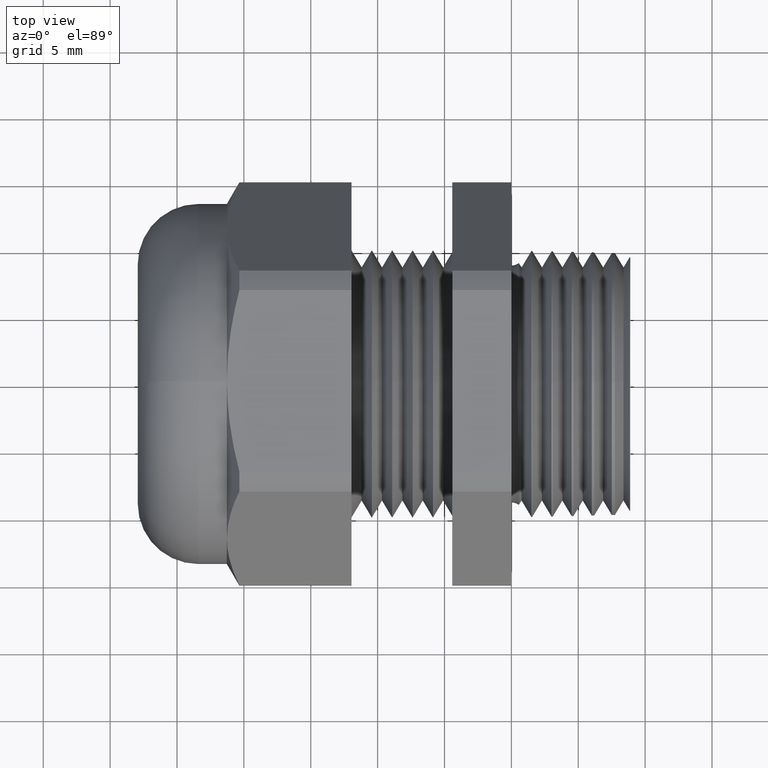
[diagram: clean part render]
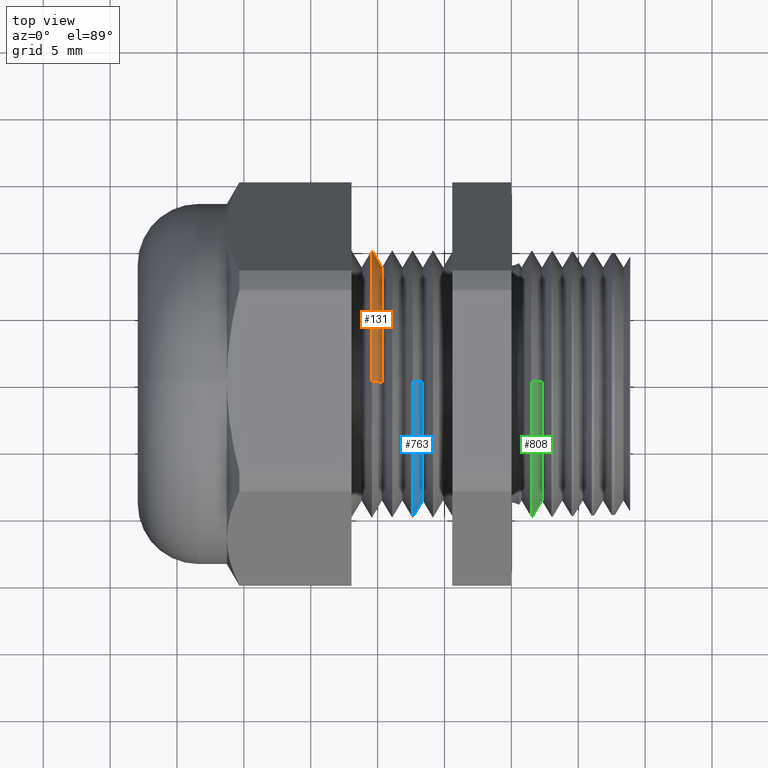
[diagram: same view with three faces highlighted in distinct colors, each labeled with its STEP entity id]
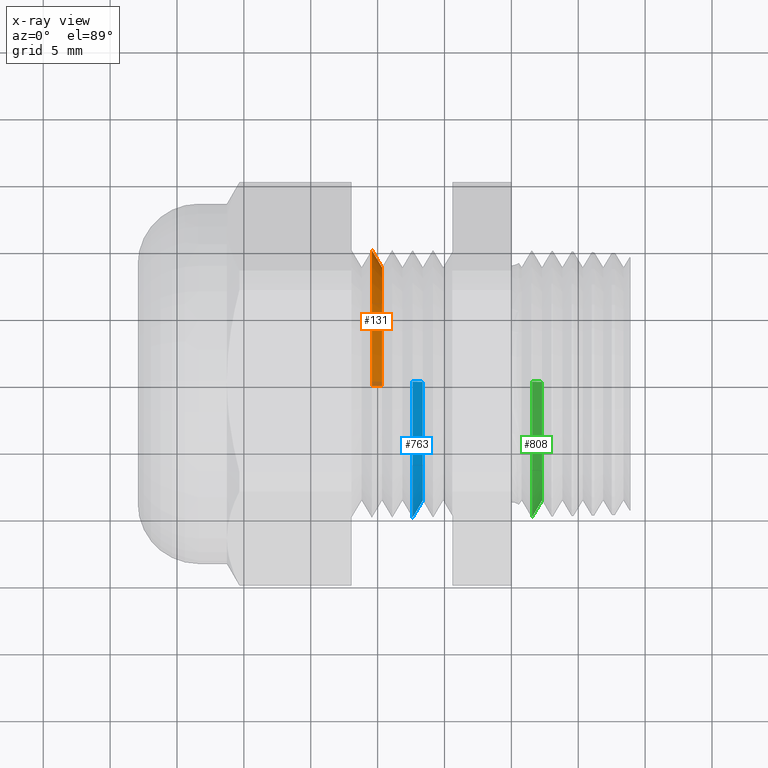
[diagram: x-ray of the same camera — body ghosted, the three highlighted faces saturated]
A machine part, top view with three faces highlighted in distinct colors.
The next image is the same camera in x-ray (body ghosted, the three faces saturated) — at least one of them is partly hidden behind the body in this view.
Their STEP definitions:

[orange] entity #131 — the highlighted conical surface has half-angle 60 deg.
#115 = VERTEX_POINT ( 'NONE', #1119 ) ;
#131 = ADVANCED_FACE ( 'NONE', ( #1153 ), #1152, .T. ) ;
#132 = EDGE_LOOP ( 'NONE', ( #261, #778, #774, #695 ) ) ;
#242 = VERTEX_POINT ( 'NONE', #1429 ) ;
#261 = ORIENTED_EDGE ( 'NONE', *, *, #265, .F. ) ;
#265 = EDGE_CURVE ( 'NONE', #242, #115, #1181, .T. ) ;
#693 = EDGE_CURVE ( 'NONE', #115, #694, #2255, .T. ) ;
#694 = VERTEX_POINT ( 'NONE', #2251 ) ;
#695 = ORIENTED_EDGE ( 'NONE', *, *, #693, .F. ) ;
#774 = ORIENTED_EDGE ( 'NONE', *, *, #775, .T. ) ;
#775 = EDGE_CURVE ( 'NONE', #777, #694, #2332, .T. ) ;
#776 = EDGE_CURVE ( 'NONE', #242, #777, #2327, .T. ) ;
#777 = VERTEX_POINT ( 'NONE', #2323 ) ;
#778 = ORIENTED_EDGE ( 'NONE', *, *, #776, .T. ) ;
#1119 = CARTESIAN_POINT ( 'NONE',  ( -0.3808333473208367300, 4.519182433362568700E-017, 0.3430385000000000200 ) ) ;
#1148 = DIRECTION ( 'NONE',  ( 0.0000000000000000000, 0.0000000000000000000, 1.000000000000000000 ) ) ;
#1149 = DIRECTION ( 'NONE',  ( -1.000000000000000000, 0.0000000000000000000, 0.0000000000000000000 ) ) ;
#1150 = AXIS2_PLACEMENT_3D ( 'NONE', #1159, #1149, #1148 ) ;
#1152 = CONICAL_SURFACE ( 'NONE', #1150, 0.3950000000000000200, 1.047197551196603200 ) ;
#1153 = FACE_OUTER_BOUND ( 'NONE', #132, .T. ) ;
#1159 = CARTESIAN_POINT ( 'NONE',  ( -0.4108333333333331100, 0.0000000000000000000, 0.0000000000000000000 ) ) ;
#1167 = CARTESIAN_POINT ( 'NONE',  ( -0.3808333473208367300, 0.0000000000000000000, 0.0000000000000000000 ) ) ;
#1179 = AXIS2_PLACEMENT_3D ( 'NONE', #1167, #1187, #1186 ) ;
#1181 = CIRCLE ( 'NONE', #1179, 0.3430385000000000200 ) ;
#1186 = DIRECTION ( 'NONE',  ( 0.0000000000000000000, 0.0000000000000000000, -1.000000000000000000 ) ) ;
#1187 = DIRECTION ( 'NONE',  ( 1.000000000000000000, 0.0000000000000000000, 0.0000000000000000000 ) ) ;
#1429 = CARTESIAN_POINT ( 'NONE',  ( -0.3808333473208367300, 0.0000000000000000000, -0.3430385000000000200 ) ) ;
#2251 = CARTESIAN_POINT ( 'NONE',  ( -0.4108333333333331100, 4.837354856632045600E-017, 0.3950000000000000200 ) ) ;
#2252 = DIRECTION ( 'NONE',  ( -0.4999999999999952800, 0.0000000000000000000, 0.8660254037844412600 ) ) ;
#2253 = VECTOR ( 'NONE', #2252, 39.37007874015748100 ) ;
#2254 = CARTESIAN_POINT ( 'NONE',  ( -0.4108333333333331100, 0.0000000000000000000, 0.3950000000000000200 ) ) ;
#2255 = LINE ( 'NONE', #2254, #2253 ) ;
#2323 = CARTESIAN_POINT ( 'NONE',  ( -0.4108333333333331100, 0.0000000000000000000, -0.3950000000000000200 ) ) ;
#2324 = DIRECTION ( 'NONE',  ( -0.4999999999999952800, 1.060575238724910200E-016, -0.8660254037844412600 ) ) ;
#2325 = VECTOR ( 'NONE', #2324, 39.37007874015748100 ) ;
#2326 = CARTESIAN_POINT ( 'NONE',  ( -0.4108333333333331100, 4.837354856632045600E-017, -0.3950000000000000200 ) ) ;
#2327 = LINE ( 'NONE', #2326, #2325 ) ;
#2328 = DIRECTION ( 'NONE',  ( 0.0000000000000000000, 0.0000000000000000000, -1.000000000000000000 ) ) ;
#2329 = DIRECTION ( 'NONE',  ( 1.000000000000000000, 0.0000000000000000000, 0.0000000000000000000 ) ) ;
#2330 = CARTESIAN_POINT ( 'NONE',  ( -0.4108333333333331100, 0.0000000000000000000, 0.0000000000000000000 ) ) ;
#2331 = AXIS2_PLACEMENT_3D ( 'NONE', #2330, #2329, #2328 ) ;
#2332 = CIRCLE ( 'NONE', #2331, 0.3950000000000000200 ) ;

[blue] entity #763 — the highlighted conical surface has half-angle 60 deg.
#94 = VERTEX_POINT ( 'NONE', #1091 ) ;
#98 = EDGE_CURVE ( 'NONE', #102, #94, #1079, .T. ) ;
#101 = EDGE_CURVE ( 'NONE', #604, #103, #1075, .T. ) ;
#102 = VERTEX_POINT ( 'NONE', #1071 ) ;
#103 = VERTEX_POINT ( 'NONE', #1070 ) ;
#604 = VERTEX_POINT ( 'NONE', #2070 ) ;
#698 = EDGE_CURVE ( 'NONE', #94, #103, #2246, .T. ) ;
#759 = EDGE_CURVE ( 'NONE', #102, #604, #2296, .T. ) ;
#763 = ADVANCED_FACE ( 'NONE', ( #2351 ), #2350, .T. ) ;
#764 = EDGE_LOOP ( 'NONE', ( #765, #766, #767, #768 ) ) ;
#765 = ORIENTED_EDGE ( 'NONE', *, *, #101, .F. ) ;
#766 = ORIENTED_EDGE ( 'NONE', *, *, #759, .F. ) ;
#767 = ORIENTED_EDGE ( 'NONE', *, *, #98, .T. ) ;
#768 = ORIENTED_EDGE ( 'NONE', *, *, #698, .T. ) ;
#1070 = CARTESIAN_POINT ( 'NONE',  ( -0.2908333333333330600, 0.0000000000000000000, -0.3950000000000000200 ) ) ;
#1071 = CARTESIAN_POINT ( 'NONE',  ( -0.2608333473208367400, 4.519182433362568700E-017, 0.3430385000000000200 ) ) ;
#1072 = DIRECTION ( 'NONE',  ( -0.4999999999999952800, 1.060575238724910200E-016, -0.8660254037844412600 ) ) ;
#1073 = VECTOR ( 'NONE', #1072, 39.37007874015748100 ) ;
#1074 = CARTESIAN_POINT ( 'NONE',  ( -0.2908333333333330600, 4.837354856632045600E-017, -0.3950000000000000200 ) ) ;
#1075 = LINE ( 'NONE', #1074, #1073 ) ;
#1076 = DIRECTION ( 'NONE',  ( -0.4999999999999952800, 0.0000000000000000000, 0.8660254037844412600 ) ) ;
#1077 = VECTOR ( 'NONE', #1076, 39.37007874015748100 ) ;
#1078 = CARTESIAN_POINT ( 'NONE',  ( -0.2908333333333330600, 0.0000000000000000000, 0.3950000000000000200 ) ) ;
#1079 = LINE ( 'NONE', #1078, #1077 ) ;
#1091 = CARTESIAN_POINT ( 'NONE',  ( -0.2908333333333330600, 4.837354856632045600E-017, 0.3950000000000000200 ) ) ;
#2070 = CARTESIAN_POINT ( 'NONE',  ( -0.2608333473208367400, 0.0000000000000000000, -0.3430385000000000200 ) ) ;
#2242 = DIRECTION ( 'NONE',  ( 0.0000000000000000000, 0.0000000000000000000, -1.000000000000000000 ) ) ;
#2243 = DIRECTION ( 'NONE',  ( 1.000000000000000000, 0.0000000000000000000, 0.0000000000000000000 ) ) ;
#2244 = CARTESIAN_POINT ( 'NONE',  ( -0.2908333333333330600, 0.0000000000000000000, 0.0000000000000000000 ) ) ;
#2245 = AXIS2_PLACEMENT_3D ( 'NONE', #2244, #2243, #2242 ) ;
#2246 = CIRCLE ( 'NONE', #2245, 0.3950000000000000200 ) ;
#2292 = DIRECTION ( 'NONE',  ( 0.0000000000000000000, 0.0000000000000000000, -1.000000000000000000 ) ) ;
#2293 = DIRECTION ( 'NONE',  ( 1.000000000000000000, 0.0000000000000000000, 0.0000000000000000000 ) ) ;
#2294 = CARTESIAN_POINT ( 'NONE',  ( -0.2608333473208367400, 0.0000000000000000000, 0.0000000000000000000 ) ) ;
#2295 = AXIS2_PLACEMENT_3D ( 'NONE', #2294, #2293, #2292 ) ;
#2296 = CIRCLE ( 'NONE', #2295, 0.3430385000000000200 ) ;
#2345 = DIRECTION ( 'NONE',  ( 0.0000000000000000000, 0.0000000000000000000, 1.000000000000000000 ) ) ;
#2346 = DIRECTION ( 'NONE',  ( -1.000000000000000000, 0.0000000000000000000, 0.0000000000000000000 ) ) ;
#2347 = CARTESIAN_POINT ( 'NONE',  ( -0.2908333333333330600, 0.0000000000000000000, 0.0000000000000000000 ) ) ;
#2348 = AXIS2_PLACEMENT_3D ( 'NONE', #2347, #2346, #2345 ) ;
#2350 = CONICAL_SURFACE ( 'NONE', #2348, 0.3950000000000000200, 1.047197551196603200 ) ;
#2351 = FACE_OUTER_BOUND ( 'NONE', #764, .T. ) ;

[green] entity #808 — the highlighted conical surface has half-angle 60 deg.
#60 = EDGE_CURVE ( 'NONE', #78, #72, #1012, .T. ) ;
#72 = VERTEX_POINT ( 'NONE', #1057 ) ;
#78 = VERTEX_POINT ( 'NONE', #1056 ) ;
#80 = VERTEX_POINT ( 'NONE', #1050 ) ;
#221 = EDGE_CURVE ( 'NONE', #72, #3162, #1353, .T. ) ;
#342 = ORIENTED_EDGE ( 'NONE', *, *, #221, .T. ) ;
#343 = ORIENTED_EDGE ( 'NONE', *, *, #60, .T. ) ;
#808 = ADVANCED_FACE ( 'NONE', ( #2404 ), #2403, .T. ) ;
#809 = EDGE_LOOP ( 'NONE', ( #810, #811, #343, #342 ) ) ;
#810 = ORIENTED_EDGE ( 'NONE', *, *, #3159, .F. ) ;
#811 = ORIENTED_EDGE ( 'NONE', *, *, #812, .T. ) ;
#812 = EDGE_CURVE ( 'NONE', #80, #78, #2398, .T. ) ;
#1006 = DIRECTION ( 'NONE',  ( -0.4999999999999952800, 0.0000000000000000000, 0.8660254037844412600 ) ) ;
#1007 = VECTOR ( 'NONE', #1006, 39.37007874015748100 ) ;
#1008 = CARTESIAN_POINT ( 'NONE',  ( 0.05999999999999999800, 0.0000000000000000000, 0.3950000000000000200 ) ) ;
#1012 = LINE ( 'NONE', #1008, #1007 ) ;
#1050 = CARTESIAN_POINT ( 'NONE',  ( 0.08999998601249635500, 4.509414201336433200E-017, -0.3430385000000000200 ) ) ;
#1056 = CARTESIAN_POINT ( 'NONE',  ( 0.08999998601249635500, 0.0000000000000000000, 0.3430385000000000200 ) ) ;
#1057 = CARTESIAN_POINT ( 'NONE',  ( 0.06092103149964918400, 0.0000000000000000000, 0.3934047266472362500 ) ) ;
#1353 = CIRCLE ( 'NONE', #1415, 0.3934047266472362500 ) ;
#1412 = DIRECTION ( 'NONE',  ( 0.0000000000000000000, 0.0000000000000000000, 1.000000000000000000 ) ) ;
#1413 = DIRECTION ( 'NONE',  ( 1.000000000000000000, 0.0000000000000000000, 0.0000000000000000000 ) ) ;
#1414 = CARTESIAN_POINT ( 'NONE',  ( 0.06092103149964918400, 0.0000000000000000000, 0.0000000000000000000 ) ) ;
#1415 = AXIS2_PLACEMENT_3D ( 'NONE', #1414, #1413, #1412 ) ;
#2395 = DIRECTION ( 'NONE',  ( 0.0000000000000000000, 0.0000000000000000000, 1.000000000000000000 ) ) ;
#2396 = DIRECTION ( 'NONE',  ( -1.000000000000000000, 0.0000000000000000000, 0.0000000000000000000 ) ) ;
#2397 = AXIS2_PLACEMENT_3D ( 'NONE', #2402, #2396, #2395 ) ;
#2398 = CIRCLE ( 'NONE', #2397, 0.3430385000000000200 ) ;
#2399 = DIRECTION ( 'NONE',  ( 0.0000000000000000000, 0.0000000000000000000, 1.000000000000000000 ) ) ;
#2400 = DIRECTION ( 'NONE',  ( -1.000000000000000000, 0.0000000000000000000, 0.0000000000000000000 ) ) ;
#2401 = AXIS2_PLACEMENT_3D ( 'NONE', #2410, #2400, #2399 ) ;
#2402 = CARTESIAN_POINT ( 'NONE',  ( 0.08999998601249635500, 0.0000000000000000000, 0.0000000000000000000 ) ) ;
#2403 = CONICAL_SURFACE ( 'NONE', #2401, 0.3950000000000000200, 1.047197551196603200 ) ;
#2404 = FACE_OUTER_BOUND ( 'NONE', #809, .T. ) ;
#2410 = CARTESIAN_POINT ( 'NONE',  ( 0.05999999999999999800, 0.0000000000000000000, 0.0000000000000000000 ) ) ;
#2823 = CARTESIAN_POINT ( 'NONE',  ( 0.06092103149964918400, 4.818109359135181500E-017, -0.3934047266472362500 ) ) ;
#2824 = DIRECTION ( 'NONE',  ( -0.4999999999999952800, 1.060575238724910200E-016, -0.8660254037844412600 ) ) ;
#2825 = VECTOR ( 'NONE', #2824, 39.37007874015748100 ) ;
#2827 = CARTESIAN_POINT ( 'NONE',  ( 0.05999999999999999800, 4.837354856632045600E-017, -0.3950000000000000200 ) ) ;
#2833 = LINE ( 'NONE', #2827, #2825 ) ;
#3159 = EDGE_CURVE ( 'NONE', #80, #3162, #2833, .T. ) ;
#3162 = VERTEX_POINT ( 'NONE', #2823 ) ;